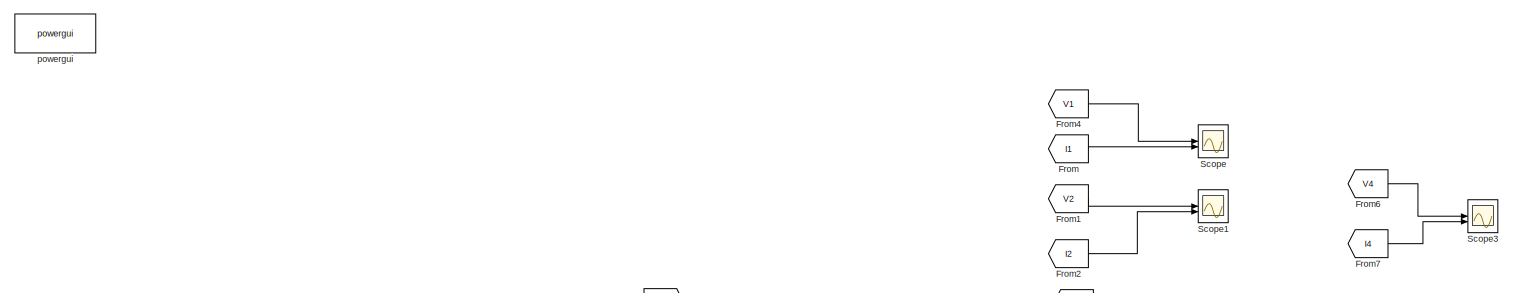
[diagram: root canvas - part 1/4, top left region]
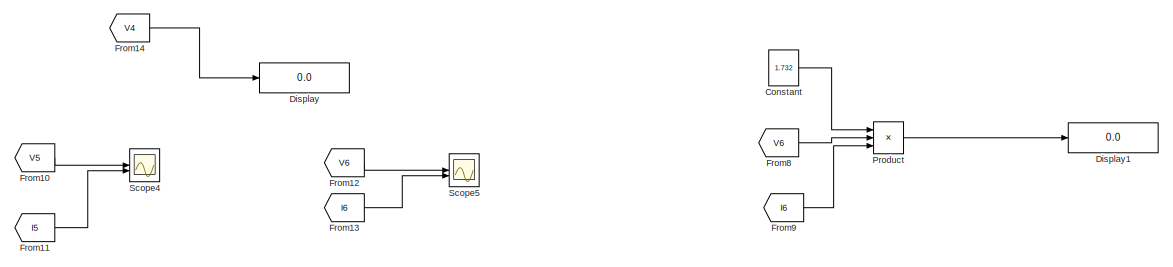
[diagram: root canvas - part 2/4, top right region]
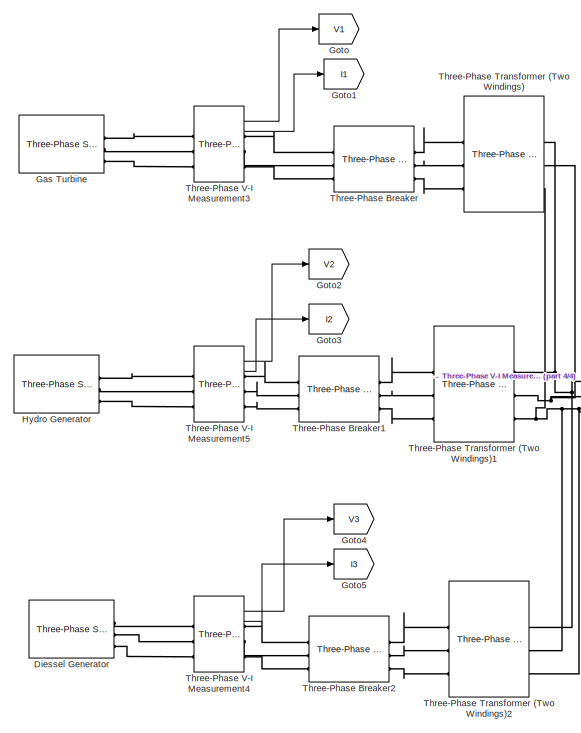
[diagram: root canvas - part 3/4, middle left region]
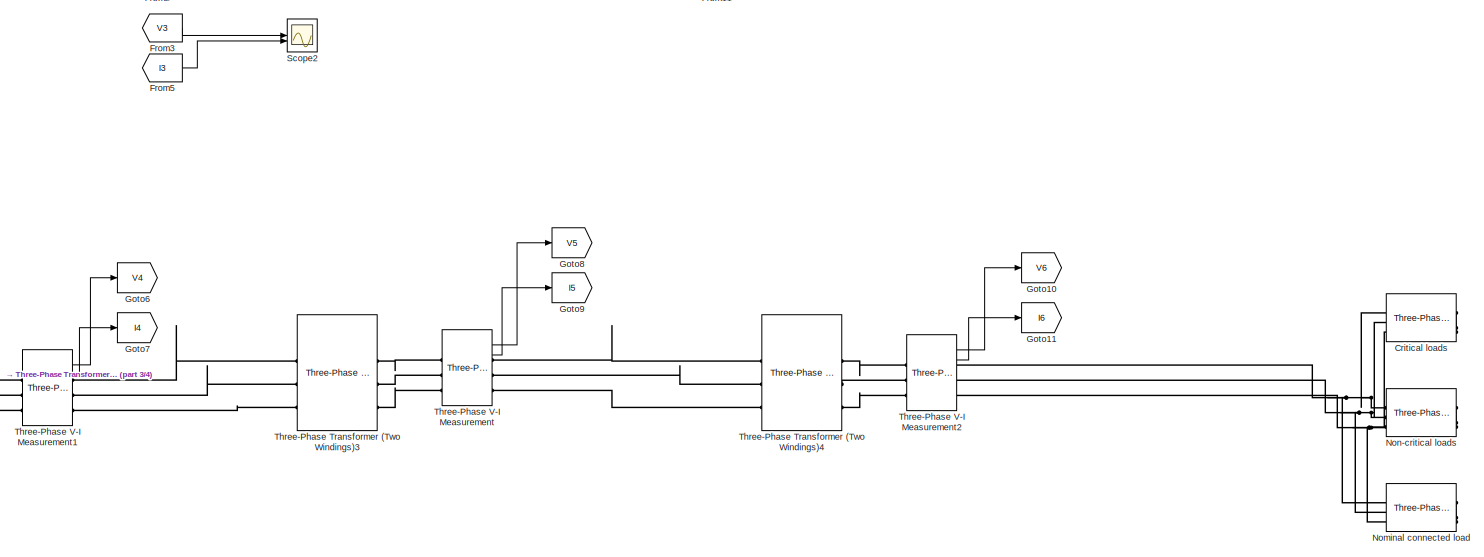
[diagram: root canvas - part 4/4, central region]
MODEL slx_d7d8ed81630e
KIND model
CONFIG AbsTol = auto
CONFIG EnableMultiTasking = off
CONFIG FixedStep = auto
CONFIG MaxStep = auto
CONFIG MinStep = auto
CONFIG RelTol = 1e-3
CONFIG SampleTimeConstraint = Unconstrained
CONFIG SolverName = VariableStepAuto
CONFIG StartTime = 0.0
CONFIG StopTime = 10.0
BLOCK [Constant] Constant
  Value = 1.732
BLOCK [Reference] Critical loads  REF=spsThreePhaseParallelRLCBranchLib/Three-Phase
Parallel RLC Branch
  AttributesFormatString = \n
  LibrarySourceBlock = sps_lib/Passives/Three-Phase\nParallel RLC Branch
  SourceBlock = spsThreePhaseParallelRLCBranchLib/Three-Phase\nParallel RLC Branch
  SourceType = Three-Phase Parallel RLC Branch
BLOCK [Reference] Diessel Generator  REF=spsThreePhaseSourceLib/Three-Phase Source
  LibrarySourceBlock = sps_lib/Sources/Three-Phase Source
  SourceBlock = spsThreePhaseSourceLib/Three-Phase Source
  SourceType = Three-Phase Source
BLOCK [Display] Display
  Decimation = 1
BLOCK [Display] Display1
  Decimation = 1
BLOCK [From] From
  GotoTag = I1
BLOCK [From] From1
  GotoTag = V2
BLOCK [From] From10
  GotoTag = V5
BLOCK [From] From11
  GotoTag = I5
BLOCK [From] From12
  GotoTag = V6
BLOCK [From] From13
  GotoTag = I6
BLOCK [From] From14
  GotoTag = V4
BLOCK [From] From2
  GotoTag = I2
BLOCK [From] From3
  GotoTag = V3
BLOCK [From] From4
  GotoTag = V1
BLOCK [From] From5
  GotoTag = I3
BLOCK [From] From6
  GotoTag = V4
BLOCK [From] From7
  GotoTag = I4
BLOCK [From] From8
  GotoTag = V6
BLOCK [From] From9
  GotoTag = I6
BLOCK [Reference] Gas Turbine  REF=spsThreePhaseSourceLib/Three-Phase Source
  LibrarySourceBlock = sps_lib/Sources/Three-Phase Source
  SourceBlock = spsThreePhaseSourceLib/Three-Phase Source
  SourceType = Three-Phase Source
BLOCK [Goto] Goto
  GotoTag = V1
BLOCK [Goto] Goto1
  GotoTag = I1
BLOCK [Goto] Goto10
  GotoTag = V6
BLOCK [Goto] Goto11
  GotoTag = I6
BLOCK [Goto] Goto2
  GotoTag = V2
BLOCK [Goto] Goto3
  GotoTag = I2
BLOCK [Goto] Goto4
  GotoTag = V3
BLOCK [Goto] Goto5
  GotoTag = I3
BLOCK [Goto] Goto6
  GotoTag = V4
BLOCK [Goto] Goto7
  GotoTag = I4
BLOCK [Goto] Goto8
  GotoTag = V5
BLOCK [Goto] Goto9
  GotoTag = I5
BLOCK [Reference] Hydro Generator  REF=spsThreePhaseSourceLib/Three-Phase Source
  LibrarySourceBlock = sps_lib/Sources/Three-Phase Source
  SourceBlock = spsThreePhaseSourceLib/Three-Phase Source
  SourceType = Three-Phase Source
BLOCK [Reference] Nominal connected load  REF=spsThreePhaseParallelRLCBranchLib/Three-Phase
Parallel RLC Branch
  AttributesFormatString = \n
  LibrarySourceBlock = sps_lib/Passives/Three-Phase\nParallel RLC Branch
  SourceBlock = spsThreePhaseParallelRLCBranchLib/Three-Phase\nParallel RLC Branch
  SourceType = Three-Phase Parallel RLC Branch
BLOCK [Reference] Non-critical loads  REF=spsThreePhaseParallelRLCBranchLib/Three-Phase
Parallel RLC Branch
  AttributesFormatString = \n
  LibrarySourceBlock = sps_lib/Passives/Three-Phase\nParallel RLC Branch
  SourceBlock = spsThreePhaseParallelRLCBranchLib/Three-Phase\nParallel RLC Branch
  SourceType = Three-Phase Parallel RLC Branch
BLOCK [Product] Product
  Inputs = 3
BLOCK [Scope] Scope
  Floating = off
  NumInputPorts = 2
  ScopeSpecificationString = Simulink.scopes.TimeScopeBlockCfg('CurrentConfiguration', extmgr.ConfigurationSet(extmgr.Configuration('Core','General UI',true),extmgr.Configuration('Core','Source UI',true),extmgr.Configuration('Sources','WiredSimulink',true),extmgr.Configuration('Visuals','Time Domain',true,'SerializedDisplays',{struct('MinYLimReal','-11234.4272','MaxYLimReal','11234.84869','YLabelReal','','MinYLimMag','   0.00...<+2235ch>
BLOCK [Scope] Scope1
  Floating = off
  NumInputPorts = 2
  ScopeSpecificationString = Simulink.scopes.TimeScopeBlockCfg('CurrentConfiguration', extmgr.ConfigurationSet(extmgr.Configuration('Core','General UI',true),extmgr.Configuration('Core','Source UI',true),extmgr.Configuration('Sources','WiredSimulink',true,'DataLoggingVariableName','ScopeData1'),extmgr.Configuration('Visuals','Time Domain',true,'SerializedDisplays',{struct('MinYLimReal','-10.00000','MaxYLimReal','10.00000','YL...<+2238ch>
BLOCK [Scope] Scope2
  Floating = off
  NumInputPorts = 2
  ScopeSpecificationString = Simulink.scopes.TimeScopeBlockCfg('CurrentConfiguration', extmgr.ConfigurationSet(extmgr.Configuration('Core','General UI',true),extmgr.Configuration('Core','Source UI',true),extmgr.Configuration('Sources','WiredSimulink',true,'DataLoggingVariableName','ScopeData2'),extmgr.Configuration('Visuals','Time Domain',true,'SerializedDisplays',{struct('MinYLimReal','-10196.00541','MaxYLimReal','10201.9930...<+2209ch>
BLOCK [Scope] Scope3
  Floating = off
  NumInputPorts = 2
  ScopeSpecificationString = Simulink.scopes.TimeScopeBlockCfg('CurrentConfiguration', extmgr.ConfigurationSet(extmgr.Configuration('Core','General UI',true),extmgr.Configuration('Core','Source UI',true),extmgr.Configuration('Sources','WiredSimulink',true,'DataLoggingVariableName','ScopeData3'),extmgr.Configuration('Visuals','Time Domain',true,'SerializedDisplays',{struct('MinYLimReal','-16.9209','MaxYLimReal','13.0791','YLab...<+2236ch>
BLOCK [Scope] Scope4
  Floating = off
  NumInputPorts = 2
  ScopeSpecificationString = Simulink.scopes.TimeScopeBlockCfg('CurrentConfiguration', extmgr.ConfigurationSet(extmgr.Configuration('Core','General UI',true),extmgr.Configuration('Core','Source UI',true),extmgr.Configuration('Sources','WiredSimulink',true,'DataLoggingVariableName','ScopeData4'),extmgr.Configuration('Visuals','Time Domain',true,'SerializedDisplays',{struct('MinYLimReal','-11202.67227','MaxYLimReal','11201.7068...<+2203ch>
BLOCK [Scope] Scope5
  Floating = off
  NumInputPorts = 2
  ScopeSpecificationString = Simulink.scopes.TimeScopeBlockCfg('CurrentConfiguration', extmgr.ConfigurationSet(extmgr.Configuration('Core','General UI',true),extmgr.Configuration('Core','Source UI',true),extmgr.Configuration('Sources','WiredSimulink',true,'DataLoggingVariableName','ScopeData5'),extmgr.Configuration('Visuals','Time Domain',true,'SerializedDisplays',{struct('MinYLimReal','-24626.64381','MaxYLimReal','24659.2790...<+2305ch>
BLOCK [Reference] Three-Phase Breaker  REF=spsThreePhaseBreakerLib/Three-Phase Breaker
  LibrarySourceBlock = sps_lib/Power Grid Elements/Three-Phase Breaker
  SourceBlock = spsThreePhaseBreakerLib/Three-Phase Breaker
  SourceType = Three-Phase Breaker
BLOCK [Reference] Three-Phase Breaker1  REF=spsThreePhaseBreakerLib/Three-Phase Breaker
  LibrarySourceBlock = sps_lib/Power Grid Elements/Three-Phase Breaker
  SourceBlock = spsThreePhaseBreakerLib/Three-Phase Breaker
  SourceType = Three-Phase Breaker
BLOCK [Reference] Three-Phase Breaker2  REF=spsThreePhaseBreakerLib/Three-Phase Breaker
  LibrarySourceBlock = sps_lib/Power Grid Elements/Three-Phase Breaker
  SourceBlock = spsThreePhaseBreakerLib/Three-Phase Breaker
  SourceType = Three-Phase Breaker
BLOCK [Reference] Three-Phase Transformer (Two Windings)  REF=spsThreePhaseTransformerTwoWindingsLib/Three-Phase
Transformer
(Two Windings)
  LibrarySourceBlock = sps_lib/Power Grid Elements/Three-Phase\nTransformer\n(Two Windings)
  SourceBlock = spsThreePhaseTransformerTwoWindingsLib/Three-Phase\nTransformer\n(Two Windings)
  SourceType = Three-Phase Transformer (Two Windings)
BLOCK [Reference] Three-Phase Transformer (Two Windings)1  REF=spsThreePhaseTransformerTwoWindingsLib/Three-Phase
Transformer
(Two Windings)
  LibrarySourceBlock = sps_lib/Power Grid Elements/Three-Phase\nTransformer\n(Two Windings)
  SourceBlock = spsThreePhaseTransformerTwoWindingsLib/Three-Phase\nTransformer\n(Two Windings)
  SourceType = Three-Phase Transformer (Two Windings)
BLOCK [Reference] Three-Phase Transformer (Two Windings)2  REF=spsThreePhaseTransformerTwoWindingsLib/Three-Phase
Transformer
(Two Windings)
  LibrarySourceBlock = sps_lib/Power Grid Elements/Three-Phase\nTransformer\n(Two Windings)
  SourceBlock = spsThreePhaseTransformerTwoWindingsLib/Three-Phase\nTransformer\n(Two Windings)
  SourceType = Three-Phase Transformer (Two Windings)
BLOCK [Reference] Three-Phase Transformer (Two Windings)3  REF=spsThreePhaseTransformerTwoWindingsLib/Three-Phase
Transformer
(Two Windings)
  LibrarySourceBlock = sps_lib/Power Grid Elements/Three-Phase\nTransformer\n(Two Windings)
  SourceBlock = spsThreePhaseTransformerTwoWindingsLib/Three-Phase\nTransformer\n(Two Windings)
  SourceType = Three-Phase Transformer (Two Windings)
BLOCK [Reference] Three-Phase Transformer (Two Windings)4  REF=spsThreePhaseTransformerTwoWindingsLib/Three-Phase
Transformer
(Two Windings)
  LibrarySourceBlock = sps_lib/Power Grid Elements/Three-Phase\nTransformer\n(Two Windings)
  SourceBlock = spsThreePhaseTransformerTwoWindingsLib/Three-Phase\nTransformer\n(Two Windings)
  SourceType = Three-Phase Transformer (Two Windings)
BLOCK [Reference] Three-Phase V-I Measurement  REF=spsThreePhaseVIMeasurementLib/Three-Phase
V-I Measurement
  LibrarySourceBlock = sps_lib/Sensors and Measurements/Three-Phase\nV-I Measurement
  SourceBlock = spsThreePhaseVIMeasurementLib/Three-Phase\nV-I Measurement
  SourceType = Three-Phase VI Measurement
BLOCK [Reference] Three-Phase V-I Measurement1  REF=spsThreePhaseVIMeasurementLib/Three-Phase
V-I Measurement
  LibrarySourceBlock = sps_lib/Sensors and Measurements/Three-Phase\nV-I Measurement
  SourceBlock = spsThreePhaseVIMeasurementLib/Three-Phase\nV-I Measurement
  SourceType = Three-Phase VI Measurement
BLOCK [Reference] Three-Phase V-I Measurement2  REF=spsThreePhaseVIMeasurementLib/Three-Phase
V-I Measurement
  LibrarySourceBlock = sps_lib/Sensors and Measurements/Three-Phase\nV-I Measurement
  SourceBlock = spsThreePhaseVIMeasurementLib/Three-Phase\nV-I Measurement
  SourceType = Three-Phase VI Measurement
BLOCK [Reference] Three-Phase V-I Measurement3  REF=spsThreePhaseVIMeasurementLib/Three-Phase
V-I Measurement
  LibrarySourceBlock = sps_lib/Sensors and Measurements/Three-Phase\nV-I Measurement
  SourceBlock = spsThreePhaseVIMeasurementLib/Three-Phase\nV-I Measurement
  SourceType = Three-Phase VI Measurement
BLOCK [Reference] Three-Phase V-I Measurement4  REF=spsThreePhaseVIMeasurementLib/Three-Phase
V-I Measurement
  LibrarySourceBlock = sps_lib/Sensors and Measurements/Three-Phase\nV-I Measurement
  SourceBlock = spsThreePhaseVIMeasurementLib/Three-Phase\nV-I Measurement
  SourceType = Three-Phase VI Measurement
BLOCK [Reference] Three-Phase V-I Measurement5  REF=spsThreePhaseVIMeasurementLib/Three-Phase
V-I Measurement
  LibrarySourceBlock = sps_lib/Sensors and Measurements/Three-Phase\nV-I Measurement
  SourceBlock = spsThreePhaseVIMeasurementLib/Three-Phase\nV-I Measurement
  SourceType = Three-Phase VI Measurement
BLOCK [Reference] powergui  REF=sps_lib/powergui
  LibrarySourceBlock = sps_lib/powergui
  Priority = 1
  SourceBlock = sps_lib/powergui
  SourceType = PSB option menu block
LINE Constant:1 -> Product:1
LINE From10:1 -> Scope4:1
LINE From11:1 -> Scope4:2
LINE From12:1 -> Scope5:1
LINE From13:1 -> Scope5:2
LINE From14:1 -> Display:1
LINE From1:1 -> Scope1:1
LINE From2:1 -> Scope1:2
LINE From3:1 -> Scope2:1
LINE From4:1 -> Scope:1
LINE From5:1 -> Scope2:2
LINE From6:1 -> Scope3:1
LINE From7:1 -> Scope3:2
LINE From8:1 -> Product:2
LINE From9:1 -> Product:3
LINE From:1 -> Scope:2
LINE Product:1 -> Display1:1
LINE Three-Phase V-I Measurement1:1 -> Goto6:1
LINE Three-Phase V-I Measurement1:2 -> Goto7:1
LINE Three-Phase V-I Measurement2:1 -> Goto10:1
LINE Three-Phase V-I Measurement2:2 -> Goto11:1
LINE Three-Phase V-I Measurement3:1 -> Goto:1
LINE Three-Phase V-I Measurement3:2 -> Goto1:1
LINE Three-Phase V-I Measurement4:1 -> Goto4:1
LINE Three-Phase V-I Measurement4:2 -> Goto5:1
LINE Three-Phase V-I Measurement5:1 -> Goto2:1
LINE Three-Phase V-I Measurement5:2 -> Goto3:1
LINE Three-Phase V-I Measurement:1 -> Goto8:1
LINE Three-Phase V-I Measurement:2 -> Goto9:1
PNET net1: Critical loads:LConn1 -- Nominal connected load:LConn1 -- Non-critical loads:LConn1 -- Three-Phase V-I Measurement2:RConn1
PNET net2: Critical loads:LConn2 -- Nominal connected load:LConn2 -- Non-critical loads:LConn2 -- Three-Phase V-I Measurement2:RConn2
PNET net3: Critical loads:LConn3 -- Nominal connected load:LConn3 -- Non-critical loads:LConn3 -- Three-Phase V-I Measurement2:RConn3
PNET net4: Critical loads:RConn1 -- Critical loads:RConn2 -- Critical loads:RConn3
PLINE Diessel Generator:RConn1 -- Three-Phase V-I Measurement4:LConn1
PLINE Diessel Generator:RConn2 -- Three-Phase V-I Measurement4:LConn2
PLINE Diessel Generator:RConn3 -- Three-Phase V-I Measurement4:LConn3
PLINE Gas Turbine:RConn1 -- Three-Phase V-I Measurement3:LConn1
PLINE Gas Turbine:RConn2 -- Three-Phase V-I Measurement3:LConn2
PLINE Gas Turbine:RConn3 -- Three-Phase V-I Measurement3:LConn3
PLINE Hydro Generator:RConn1 -- Three-Phase V-I Measurement5:LConn1
PLINE Hydro Generator:RConn2 -- Three-Phase V-I Measurement5:LConn2
PLINE Hydro Generator:RConn3 -- Three-Phase V-I Measurement5:LConn3
PNET net5: Nominal connected load:RConn1 -- Nominal connected load:RConn2 -- Nominal connected load:RConn3
PNET net6: Non-critical loads:RConn1 -- Non-critical loads:RConn2 -- Non-critical loads:RConn3
PLINE Three-Phase Breaker1:LConn1 -- Three-Phase V-I Measurement5:RConn1
PLINE Three-Phase Breaker1:LConn2 -- Three-Phase V-I Measurement5:RConn2
PLINE Three-Phase Breaker1:LConn3 -- Three-Phase V-I Measurement5:RConn3
PLINE Three-Phase Breaker1:RConn1 -- Three-Phase Transformer (Two Windings)1:LConn1
PLINE Three-Phase Breaker1:RConn2 -- Three-Phase Transformer (Two Windings)1:LConn2
PLINE Three-Phase Breaker1:RConn3 -- Three-Phase Transformer (Two Windings)1:LConn3
PLINE Three-Phase Breaker2:LConn1 -- Three-Phase V-I Measurement4:RConn1
PLINE Three-Phase Breaker2:LConn2 -- Three-Phase V-I Measurement4:RConn2
PLINE Three-Phase Breaker2:LConn3 -- Three-Phase V-I Measurement4:RConn3
PLINE Three-Phase Breaker2:RConn1 -- Three-Phase Transformer (Two Windings)2:LConn1
PLINE Three-Phase Breaker2:RConn2 -- Three-Phase Transformer (Two Windings)2:LConn2
PLINE Three-Phase Breaker2:RConn3 -- Three-Phase Transformer (Two Windings)2:LConn3
PLINE Three-Phase Breaker:LConn1 -- Three-Phase V-I Measurement3:RConn1
PLINE Three-Phase Breaker:LConn2 -- Three-Phase V-I Measurement3:RConn2
PLINE Three-Phase Breaker:LConn3 -- Three-Phase V-I Measurement3:RConn3
PLINE Three-Phase Breaker:RConn1 -- Three-Phase Transformer (Two Windings):LConn1
PLINE Three-Phase Breaker:RConn2 -- Three-Phase Transformer (Two Windings):LConn2
PLINE Three-Phase Breaker:RConn3 -- Three-Phase Transformer (Two Windings):LConn3
PNET net7: Three-Phase Transformer (Two Windings)1:RConn1 -- Three-Phase Transformer (Two Windings)2:RConn1 -- Three-Phase Transformer (Two Windings):RConn1 -- Three-Phase V-I Measurement1:LConn1
PNET net8: Three-Phase Transformer (Two Windings)1:RConn2 -- Three-Phase Transformer (Two Windings):RConn2 -- Three-Phase V-I Measurement1:LConn2
PNET net9: Three-Phase Transformer (Two Windings)1:RConn3 -- Three-Phase Transformer (Two Windings)2:RConn2 -- Three-Phase Transformer (Two Windings)2:RConn3 -- Three-Phase Transformer (Two Windings):RConn3 -- Three-Phase V-I Measurement1:LConn3
PLINE Three-Phase Transformer (Two Windings)3:LConn1 -- Three-Phase V-I Measurement1:RConn1
PLINE Three-Phase Transformer (Two Windings)3:LConn2 -- Three-Phase V-I Measurement1:RConn2
PLINE Three-Phase Transformer (Two Windings)3:LConn3 -- Three-Phase V-I Measurement1:RConn3
PLINE Three-Phase Transformer (Two Windings)3:RConn1 -- Three-Phase V-I Measurement:LConn1
PLINE Three-Phase Transformer (Two Windings)3:RConn2 -- Three-Phase V-I Measurement:LConn2
PLINE Three-Phase Transformer (Two Windings)3:RConn3 -- Three-Phase V-I Measurement:LConn3
PLINE Three-Phase Transformer (Two Windings)4:LConn1 -- Three-Phase V-I Measurement:RConn1
PLINE Three-Phase Transformer (Two Windings)4:LConn2 -- Three-Phase V-I Measurement:RConn2
PLINE Three-Phase Transformer (Two Windings)4:LConn3 -- Three-Phase V-I Measurement:RConn3
PLINE Three-Phase Transformer (Two Windings)4:RConn1 -- Three-Phase V-I Measurement2:LConn1
PLINE Three-Phase Transformer (Two Windings)4:RConn2 -- Three-Phase V-I Measurement2:LConn2
PLINE Three-Phase Transformer (Two Windings)4:RConn3 -- Three-Phase V-I Measurement2:LConn3
note: PNET lines group multi-terminal physical nets as a canonical sorted terminal list (undirected conserving connections); 2-terminal nets keep the pairwise PLINE form
